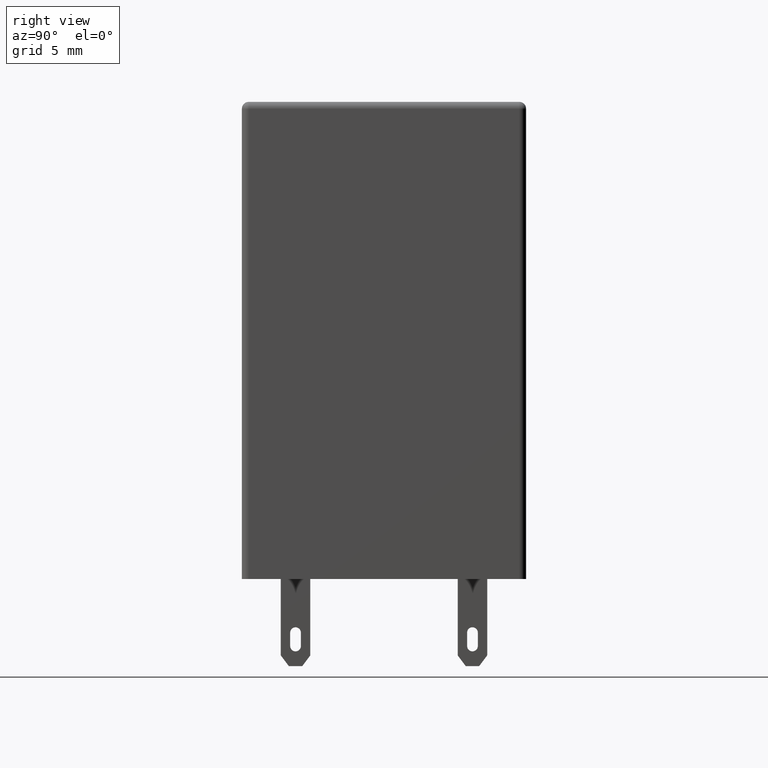
[diagram: clean part render]
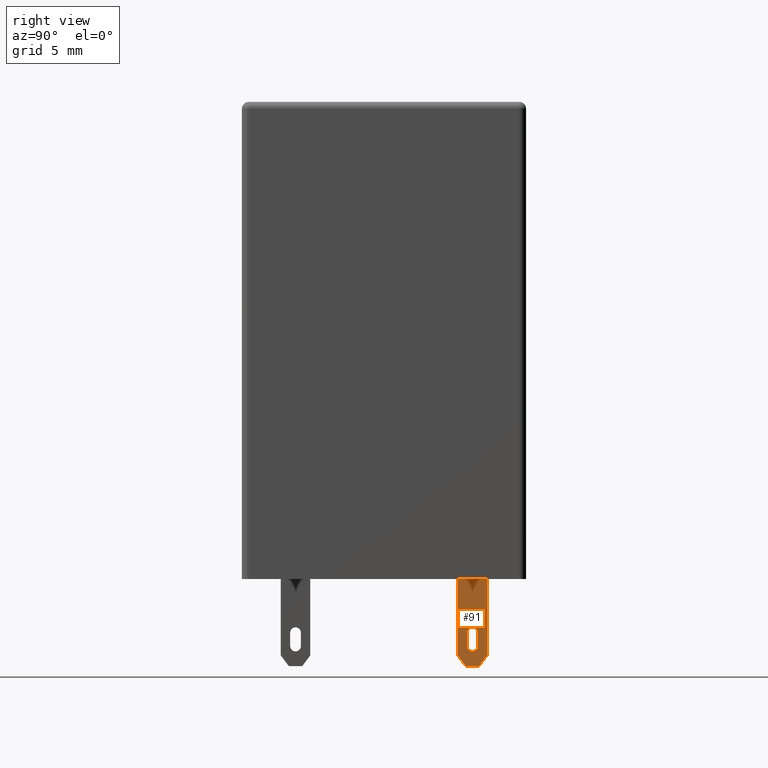
[diagram: same view with one face highlighted and labeled with its STEP entity id]
A machine part, right view. The second image highlights one B-rep face of the part: STEP entity #91.
In plain terms, the highlighted planar face has unit normal (-1, -0, 0).
Its self-contained STEP definition (entity closure, byte-faithful):
#65 = EDGE_CURVE ( 'NONE', #70, #1555, #1684, .T. ) ;
#66 = ORIENTED_EDGE ( 'NONE', *, *, #1460, .T. ) ;
#67 = EDGE_CURVE ( 'NONE', #72, #73, #1680, .T. ) ;
#68 = ORIENTED_EDGE ( 'NONE', *, *, #69, .T. ) ;
#69 = EDGE_CURVE ( 'NONE', #72, #70, #1676, .T. ) ;
#70 = VERTEX_POINT ( 'NONE', #1736 ) ;
#71 = ORIENTED_EDGE ( 'NONE', *, *, #79, .T. ) ;
#72 = VERTEX_POINT ( 'NONE', #1735 ) ;
#73 = VERTEX_POINT ( 'NONE', #1734 ) ;
#74 = ORIENTED_EDGE ( 'NONE', *, *, #78, .F. ) ;
#75 = ORIENTED_EDGE ( 'NONE', *, *, #65, .T. ) ;
#76 = VERTEX_POINT ( 'NONE', #1733 ) ;
#77 = ORIENTED_EDGE ( 'NONE', *, *, #67, .F. ) ;
#78 = EDGE_CURVE ( 'NONE', #76, #1461, #1732, .T. ) ;
#79 = EDGE_CURVE ( 'NONE', #76, #73, #1728, .T. ) ;
#82 = ORIENTED_EDGE ( 'NONE', *, *, #84, .T. ) ;
#83 = ORIENTED_EDGE ( 'NONE', *, *, #1293, .T. ) ;
#84 = EDGE_CURVE ( 'NONE', #94, #1294, #1723, .T. ) ;
#85 = ORIENTED_EDGE ( 'NONE', *, *, #87, .T. ) ;
#86 = EDGE_CURVE ( 'NONE', #96, #88, #1718, .T. ) ;
#87 = EDGE_CURVE ( 'NONE', #88, #94, #1713, .T. ) ;
#88 = VERTEX_POINT ( 'NONE', #1709 ) ;
#89 = ORIENTED_EDGE ( 'NONE', *, *, #86, .T. ) ;
#90 = ORIENTED_EDGE ( 'NONE', *, *, #101, .T. ) ;
#91 = ADVANCED_FACE ( 'NONE', ( #1708, #1707 ), #1750, .F. ) ;
#94 = VERTEX_POINT ( 'NONE', #1741 ) ;
#95 = EDGE_LOOP ( 'NONE', ( #90, #89, #85, #82, #83 ) ) ;
#96 = VERTEX_POINT ( 'NONE', #1740 ) ;
#98 = EDGE_LOOP ( 'NONE', ( #74, #71, #77, #68, #75, #66 ) ) ;
#101 = EDGE_CURVE ( 'NONE', #1295, #96, #1792, .T. ) ;
#1293 = EDGE_CURVE ( 'NONE', #1294, #1295, #4375, .T. ) ;
#1294 = VERTEX_POINT ( 'NONE', #4434 ) ;
#1295 = VERTEX_POINT ( 'NONE', #4433 ) ;
#1460 = EDGE_CURVE ( 'NONE', #1555, #1461, #4727, .T. ) ;
#1461 = VERTEX_POINT ( 'NONE', #4778 ) ;
#1555 = VERTEX_POINT ( 'NONE', #4882 ) ;
#1675 = CARTESIAN_POINT ( 'NONE',  ( 7.799999999999997200, 7.316000000000003400, -6.212000000000000600 ) ) ;
#1676 = LINE ( 'NONE', #1675, #1738 ) ;
#1677 = DIRECTION ( 'NONE',  ( 1.971276677246372700E-015, -1.000000000000000000, 0.0000000000000000000 ) ) ;
#1678 = VECTOR ( 'NONE', #1677, 1000.000000000000000 ) ;
#1679 = CARTESIAN_POINT ( 'NONE',  ( 7.799999999999999800, 7.700000000000000200, -6.500000000000000000 ) ) ;
#1680 = LINE ( 'NONE', #1679, #1678 ) ;
#1681 = DIRECTION ( 'NONE',  ( 0.0000000000000000000, 0.0000000000000000000, 1.000000000000000000 ) ) ;
#1682 = VECTOR ( 'NONE', #1681, 1000.000000000000000 ) ;
#1683 = CARTESIAN_POINT ( 'NONE',  ( 7.799999999999999800, 7.700000000000000200, -6.500000000000000000 ) ) ;
#1684 = LINE ( 'NONE', #1683, #1682 ) ;
#1707 = FACE_OUTER_BOUND ( 'NONE', #98, .T. ) ;
#1708 = FACE_BOUND ( 'NONE', #95, .T. ) ;
#1709 = CARTESIAN_POINT ( 'NONE',  ( 7.799999999999996300, 6.200000000000002000, -4.999999999999999100 ) ) ;
#1710 = DIRECTION ( 'NONE',  ( -3.419619929664839300E-031, -8.673617379884044300E-016, 1.000000000000000000 ) ) ;
#1711 = VECTOR ( 'NONE', #1710, 1000.000000000000000 ) ;
#1712 = CARTESIAN_POINT ( 'NONE',  ( 7.799999999999996300, 6.200000000000002000, -6.500000000000001800 ) ) ;
#1713 = LINE ( 'NONE', #1712, #1711 ) ;
#1714 = DIRECTION ( 'NONE',  ( 0.0000000000000000000, -1.000000000000000000, 0.0000000000000000000 ) ) ;
#1715 = DIRECTION ( 'NONE',  ( -1.000000000000000000, 3.942553354492743000E-016, 0.0000000000000000000 ) ) ;
#1716 = CARTESIAN_POINT ( 'NONE',  ( 7.799999999999997200, 6.600000000000001400, -4.999999999999999100 ) ) ;
#1717 = AXIS2_PLACEMENT_3D ( 'NONE', #1716, #1715, #1714 ) ;
#1718 = CIRCLE ( 'NONE', #1717, 0.4000000000000001900 ) ;
#1719 = DIRECTION ( 'NONE',  ( 0.0000000000000000000, -1.000000000000000000, 0.0000000000000000000 ) ) ;
#1720 = DIRECTION ( 'NONE',  ( -1.000000000000000000, 3.942553354492743000E-016, 0.0000000000000000000 ) ) ;
#1721 = CARTESIAN_POINT ( 'NONE',  ( 7.799999999999997200, 6.600000000000001400, -3.999999999999999100 ) ) ;
#1722 = AXIS2_PLACEMENT_3D ( 'NONE', #1721, #1720, #1719 ) ;
#1723 = CIRCLE ( 'NONE', #1722, 0.4000000000000010200 ) ;
#1725 = DIRECTION ( 'NONE',  ( 2.365532012695644700E-016, 0.5999999999999997600, -0.8000000000000002700 ) ) ;
#1726 = VECTOR ( 'NONE', #1725, 1000.000000000000100 ) ;
#1727 = CARTESIAN_POINT ( 'NONE',  ( 7.799999999999997200, 6.675999999999999300, -7.268000000000000700 ) ) ;
#1728 = LINE ( 'NONE', #1727, #1726 ) ;
#1729 = DIRECTION ( 'NONE',  ( 0.0000000000000000000, 0.0000000000000000000, 1.000000000000000000 ) ) ;
#1730 = VECTOR ( 'NONE', #1729, 1000.000000000000000 ) ;
#1731 = CARTESIAN_POINT ( 'NONE',  ( 7.800000000000004300, 5.500000000000001800, -6.500000000000000000 ) ) ;
#1732 = LINE ( 'NONE', #1731, #1730 ) ;
#1733 = CARTESIAN_POINT ( 'NONE',  ( 7.799999999999996300, 5.500000000000000000, -5.699999999999999300 ) ) ;
#1734 = CARTESIAN_POINT ( 'NONE',  ( 7.799999999999997200, 6.099999999999999600, -6.500000000000000000 ) ) ;
#1735 = CARTESIAN_POINT ( 'NONE',  ( 7.800000000000000700, 7.100000000000004100, -6.500000000000000000 ) ) ;
#1736 = CARTESIAN_POINT ( 'NONE',  ( 7.799999999999997200, 7.700000000000003700, -5.699999999999999300 ) ) ;
#1737 = DIRECTION ( 'NONE',  ( 2.365532012695644700E-016, 0.5999999999999997600, 0.8000000000000002700 ) ) ;
#1738 = VECTOR ( 'NONE', #1737, 1000.000000000000100 ) ;
#1740 = CARTESIAN_POINT ( 'NONE',  ( 7.799999999999997200, 7.000000000000001800, -4.999999999999999100 ) ) ;
#1741 = CARTESIAN_POINT ( 'NONE',  ( 7.800000000000002500, 6.200000000000000200, -4.000000000000000000 ) ) ;
#1746 = DIRECTION ( 'NONE',  ( 1.971276677246372700E-015, -1.000000000000000000, 0.0000000000000000000 ) ) ;
#1747 = DIRECTION ( 'NONE',  ( -1.000000000000000000, -1.971276677246372700E-015, 0.0000000000000000000 ) ) ;
#1748 = CARTESIAN_POINT ( 'NONE',  ( 7.799999999999999800, 7.700000000000000200, -6.500000000000000000 ) ) ;
#1749 = AXIS2_PLACEMENT_3D ( 'NONE', #1748, #1747, #1746 ) ;
#1750 = PLANE ( 'NONE',  #1749 ) ;
#1789 = DIRECTION ( 'NONE',  ( -3.419619929664839300E-031, -8.673617379884044300E-016, -1.000000000000000000 ) ) ;
#1790 = VECTOR ( 'NONE', #1789, 1000.000000000000000 ) ;
#1791 = CARTESIAN_POINT ( 'NONE',  ( 7.799999999999997200, 7.000000000000000900, -6.499999999999999100 ) ) ;
#1792 = LINE ( 'NONE', #1791, #1790 ) ;
#4375 = CIRCLE ( 'NONE', #4438, 0.4000000000000010200 ) ;
#4433 = CARTESIAN_POINT ( 'NONE',  ( 7.799999999999997200, 7.000000000000002700, -4.000000000000000000 ) ) ;
#4434 = CARTESIAN_POINT ( 'NONE',  ( 7.799999999999997200, 6.600000000000001400, -3.599999999999998300 ) ) ;
#4435 = DIRECTION ( 'NONE',  ( 0.0000000000000000000, -1.000000000000000000, 0.0000000000000000000 ) ) ;
#4436 = DIRECTION ( 'NONE',  ( -1.000000000000000000, 3.942553354492743000E-016, 0.0000000000000000000 ) ) ;
#4437 = CARTESIAN_POINT ( 'NONE',  ( 7.799999999999997200, 6.600000000000001400, -3.999999999999999100 ) ) ;
#4438 = AXIS2_PLACEMENT_3D ( 'NONE', #4437, #4436, #4435 ) ;
#4724 = DIRECTION ( 'NONE',  ( 1.971276677246372700E-015, -1.000000000000000000, 0.0000000000000000000 ) ) ;
#4725 = VECTOR ( 'NONE', #4724, 1000.000000000000000 ) ;
#4726 = CARTESIAN_POINT ( 'NONE',  ( 7.799999999999999800, 7.700000000000000200, 0.0000000000000000000 ) ) ;
#4727 = LINE ( 'NONE', #4726, #4725 ) ;
#4778 = CARTESIAN_POINT ( 'NONE',  ( 7.800000000000001600, 5.500000000000001800, 0.0000000000000000000 ) ) ;
#4882 = CARTESIAN_POINT ( 'NONE',  ( 7.799999999999999800, 7.700000000000000200, 0.0000000000000000000 ) ) ;